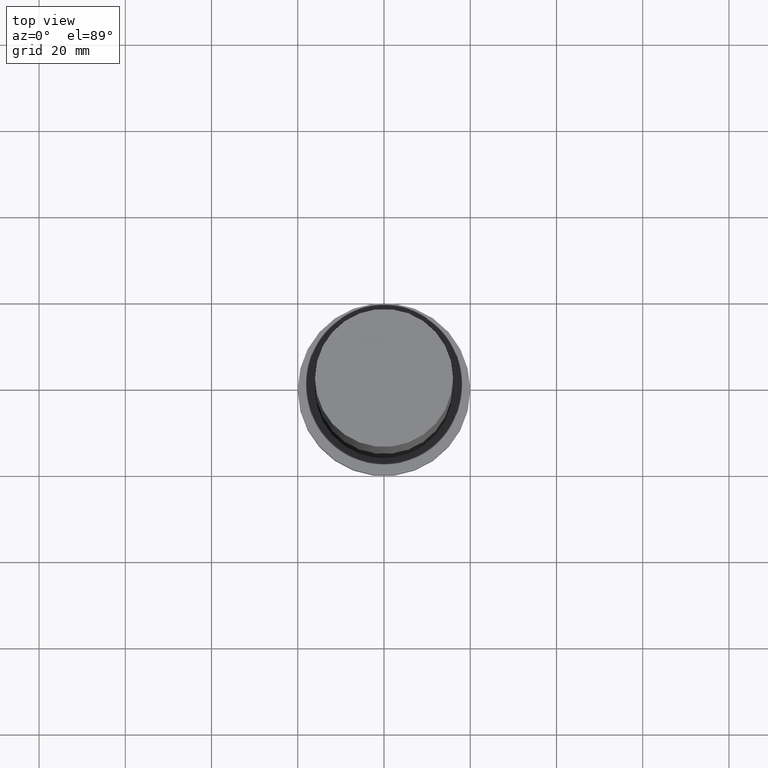
[diagram: clean part render]
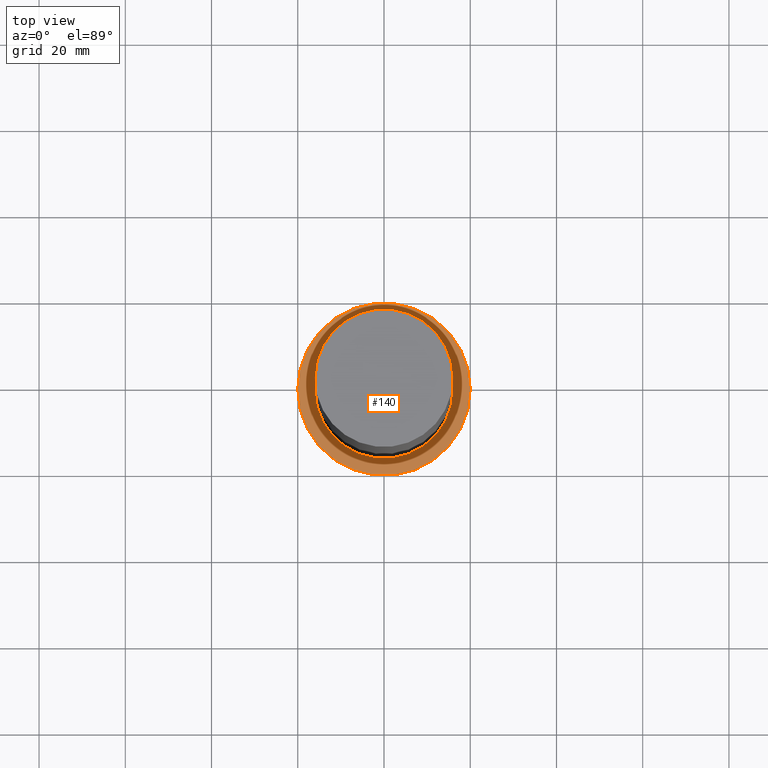
[diagram: same view with one face highlighted and labeled with its STEP entity id]
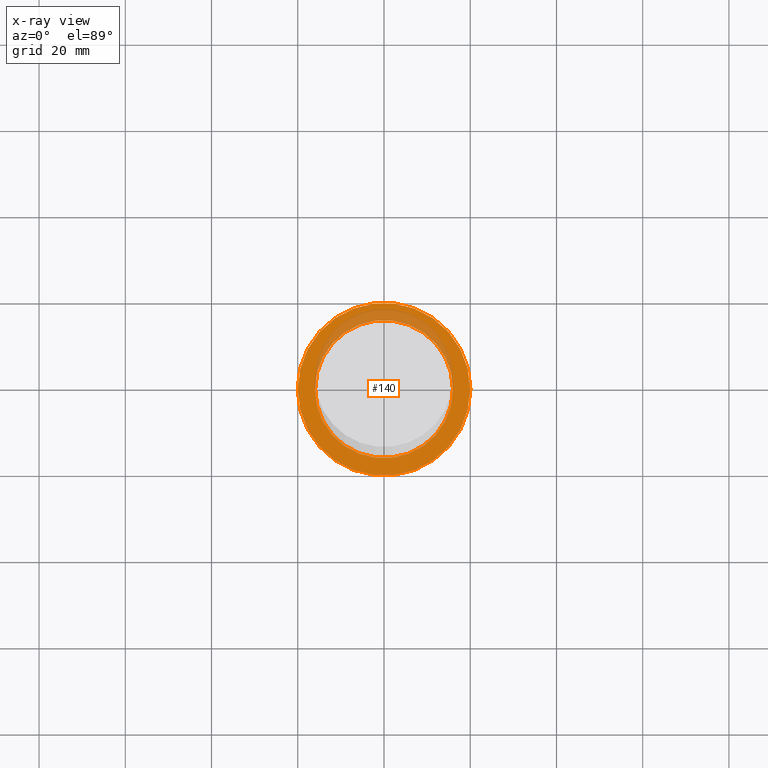
[diagram: x-ray of the same camera — body ghosted, the highlighted face saturated]
A machine part, top view. The second image highlights one B-rep face of the part: STEP entity #140.
The next image is the same camera in x-ray: the body ghosted, the highlighted face saturated — about 19% of this face is hidden behind the body in this view.
In plain terms, the highlighted planar face has unit normal (0, 0, 1).
Its self-contained STEP definition (entity closure, byte-faithful):
#3 = FACE_BOUND ( 'NONE', #194, .T. ) ;
#4 = CARTESIAN_POINT ( 'NONE',  ( 0.000000000000000000, 0.000000000000000000, 10.00000000000000000 ) ) ;
#6 = EDGE_CURVE ( 'NONE', #139, #18, #240, .T. ) ;
#18 = VERTEX_POINT ( 'NONE', #77 ) ;
#37 = DIRECTION ( 'NONE',  ( 0.000000000000000000, 0.000000000000000000, 1.000000000000000000 ) ) ;
#48 = AXIS2_PLACEMENT_3D ( 'NONE', #64, #201, #222 ) ;
#50 = VERTEX_POINT ( 'NONE', #253 ) ;
#53 = DIRECTION ( 'NONE',  ( 0.000000000000000000, 0.000000000000000000, 1.000000000000000000 ) ) ;
#55 = EDGE_LOOP ( 'NONE', ( #160, #193 ) ) ;
#58 = AXIS2_PLACEMENT_3D ( 'NONE', #95, #37, #156 ) ;
#60 = CIRCLE ( 'NONE', #171, 16.00000000000000000 ) ;
#61 = FACE_OUTER_BOUND ( 'NONE', #55, .T. ) ;
#64 = CARTESIAN_POINT ( 'NONE',  ( 0.000000000000000000, 0.000000000000000000, 10.00000000000000000 ) ) ;
#77 = CARTESIAN_POINT ( 'NONE',  ( -16.00000000000000000, 0.000000000000000000, 10.00000000000000000 ) ) ;
#78 = EDGE_CURVE ( 'NONE', #18, #139, #60, .T. ) ;
#82 = CARTESIAN_POINT ( 'NONE',  ( 20.00000000000000000, 2.449293598294706513E-15, 10.00000000000000000 ) ) ;
#83 = DIRECTION ( 'NONE',  ( 1.000000000000000000, 0.000000000000000000, 0.000000000000000000 ) ) ;
#95 = CARTESIAN_POINT ( 'NONE',  ( 0.000000000000000000, 0.000000000000000000, 10.00000000000000000 ) ) ;
#98 = PLANE ( 'NONE',  #48 ) ;
#99 = CARTESIAN_POINT ( 'NONE',  ( 16.00000000000000000, 1.959434878635765131E-15, 10.00000000000000000 ) ) ;
#103 = DIRECTION ( 'NONE',  ( 0.000000000000000000, 0.000000000000000000, 1.000000000000000000 ) ) ;
#108 = ORIENTED_EDGE ( 'NONE', *, *, #6, .F. ) ;
#111 = AXIS2_PLACEMENT_3D ( 'NONE', #126, #103, #83 ) ;
#126 = CARTESIAN_POINT ( 'NONE',  ( 0.000000000000000000, 0.000000000000000000, 10.00000000000000000 ) ) ;
#136 = DIRECTION ( 'NONE',  ( 1.000000000000000000, 0.000000000000000000, 0.000000000000000000 ) ) ;
#137 = CIRCLE ( 'NONE', #111, 20.00000000000000000 ) ;
#138 = AXIS2_PLACEMENT_3D ( 'NONE', #4, #205, #161 ) ;
#139 = VERTEX_POINT ( 'NONE', #99 ) ;
#140 = ADVANCED_FACE ( 'NONE', ( #3, #61 ), #98, .T. ) ;
#148 = CIRCLE ( 'NONE', #138, 20.00000000000000000 ) ;
#156 = DIRECTION ( 'NONE',  ( 1.000000000000000000, 0.000000000000000000, 0.000000000000000000 ) ) ;
#160 = ORIENTED_EDGE ( 'NONE', *, *, #218, .T. ) ;
#161 = DIRECTION ( 'NONE',  ( 1.000000000000000000, 0.000000000000000000, 0.000000000000000000 ) ) ;
#171 = AXIS2_PLACEMENT_3D ( 'NONE', #232, #53, #136 ) ;
#177 = EDGE_CURVE ( 'NONE', #236, #50, #137, .T. ) ;
#193 = ORIENTED_EDGE ( 'NONE', *, *, #177, .T. ) ;
#194 = EDGE_LOOP ( 'NONE', ( #198, #108 ) ) ;
#198 = ORIENTED_EDGE ( 'NONE', *, *, #78, .F. ) ;
#201 = DIRECTION ( 'NONE',  ( 0.000000000000000000, 0.000000000000000000, 1.000000000000000000 ) ) ;
#205 = DIRECTION ( 'NONE',  ( 0.000000000000000000, 0.000000000000000000, 1.000000000000000000 ) ) ;
#218 = EDGE_CURVE ( 'NONE', #50, #236, #148, .T. ) ;
#222 = DIRECTION ( 'NONE',  ( 1.000000000000000000, 0.000000000000000000, -0.000000000000000000 ) ) ;
#232 = CARTESIAN_POINT ( 'NONE',  ( 0.000000000000000000, 0.000000000000000000, 10.00000000000000000 ) ) ;
#236 = VERTEX_POINT ( 'NONE', #82 ) ;
#240 = CIRCLE ( 'NONE', #58, 16.00000000000000000 ) ;
#253 = CARTESIAN_POINT ( 'NONE',  ( -20.00000000000000000, 0.000000000000000000, 10.00000000000000000 ) ) ;